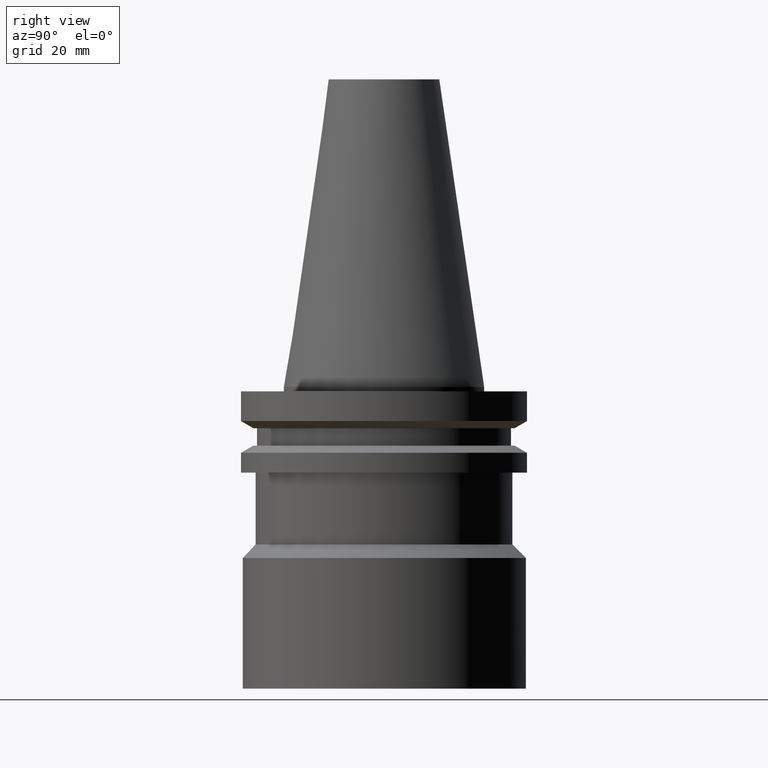
[diagram: clean part render]
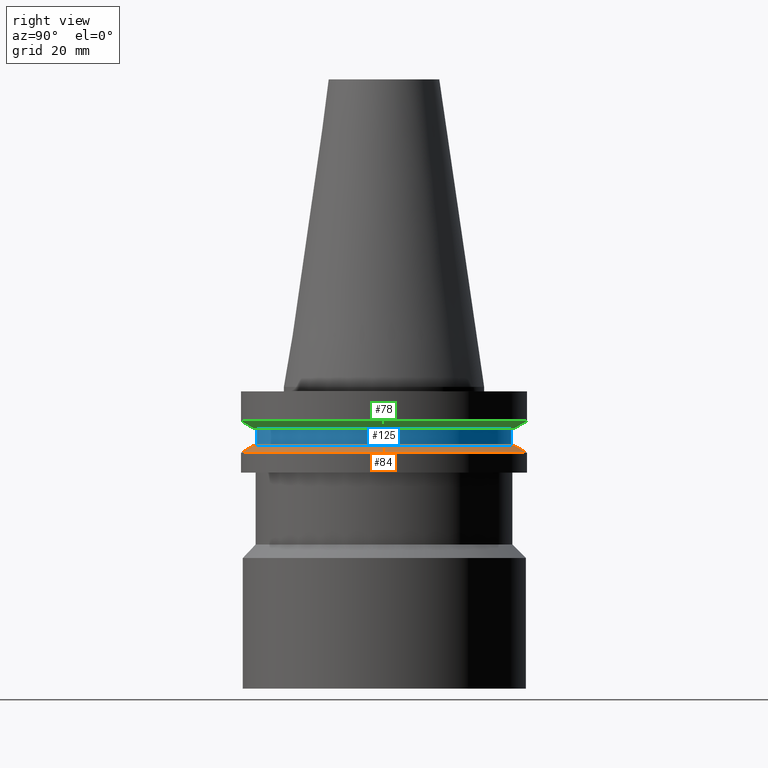
[diagram: same view with three faces highlighted in distinct colors, each labeled with its STEP entity id]
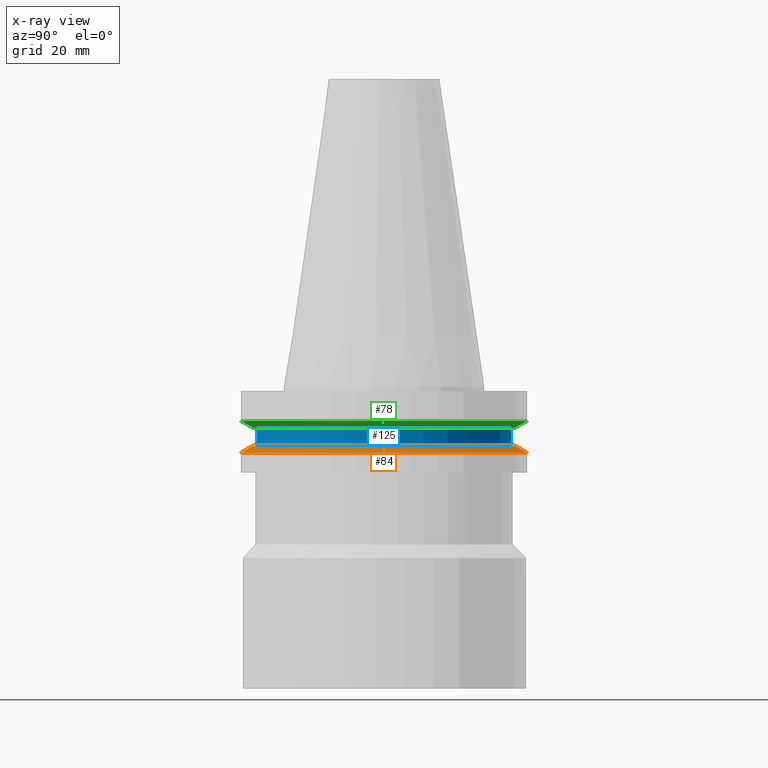
[diagram: x-ray of the same camera — body ghosted, the three highlighted faces saturated]
A machine part, right view with three faces highlighted in distinct colors.
The next image is the same camera in x-ray (body ghosted, the three faces saturated) — at least one of them is partly hidden behind the body in this view.
Their STEP definitions:

[orange] entity #84 — the highlighted conical surface has half-angle 60 deg.
#84=ADVANCED_FACE('Unnamed[1]',(#194,#195),#196,.T.);
#119=EDGE_CURVE('Unnamed[1]',#250,#250,#251,.T.);
#132=EDGE_CURVE('Unnamed[1]',#271,#271,#272,.T.);
#194=FACE_BOUND('',#337,.T.);
#195=FACE_BOUND('',#338,.T.);
#196=CONICAL_SURFACE('',#339,30.3590187752662,1.0471975511966);
#250=VERTEX_POINT('',#407);
#251=CIRCLE('',#408,31.75);
#271=VERTEX_POINT('',#433);
#272=CIRCLE('',#434,28.9680375505324);
#337=EDGE_LOOP('',(#485));
#338=EDGE_LOOP('',(#486));
#339=AXIS2_PLACEMENT_3D('',#487,#488,#489);
#407=CARTESIAN_POINT('',(8.96819062676333E-016,31.75,-14.6461667690755));
#408=AXIS2_PLACEMENT_3D('',#549,#550,#551);
#433=CARTESIAN_POINT('',(7.98469713044073E-016,28.9680375505324,-13.04));
#434=AXIS2_PLACEMENT_3D('',#573,#574,#575);
#485=ORIENTED_EDGE('',*,*,#119,.F.);
#486=ORIENTED_EDGE('',*,*,#132,.T.);
#487=CARTESIAN_POINT('',(8.47644387860203E-016,-1.86466245337184E-014,-13.8430833845377));
#488=DIRECTION('',(6.12323399573677E-017,-1.22344063254652E-016,-1.0));
#489=DIRECTION('',(2.66426054220624E-033,1.0,-1.22344063254652E-016));
#549=CARTESIAN_POINT('',(8.96819062676333E-016,-1.8744877018115E-014,-14.6461667690755));
#550=DIRECTION('',(6.12323399573677E-017,-1.22344063254663E-016,-1.0));
#551=DIRECTION('',(2.66426054220605E-033,1.0,-1.22344063254663E-016));
#573=CARTESIAN_POINT('',(7.98469713044073E-016,-1.85483720493217E-014,-13.04));
#574=DIRECTION('',(6.12323399573677E-017,-1.2234406325464E-016,-1.0));
#575=DIRECTION('',(2.66426054220334E-033,1.0,-1.2234406325464E-016));

[blue] entity #125 — the highlighted cylindrical surface (bore or boss wall) has radius 28.18 mm, axis along (0, -0, -1).
#59=EDGE_CURVE('Unnamed[1]',#158,#158,#159,.T.);
#71=EDGE_CURVE('Unnamed[1]',#175,#175,#176,.T.);
#125=ADVANCED_FACE('Unnamed[1]',(#259,#260),#261,.T.);
#158=VERTEX_POINT('',#292);
#159=CIRCLE('',#293,28.18);
#175=VERTEX_POINT('',#313);
#176=CIRCLE('',#314,28.18);
#259=FACE_BOUND('',#418,.T.);
#260=FACE_BOUND('',#419,.T.);
#261=CYLINDRICAL_SURFACE('',#420,28.18);
#292=CARTESIAN_POINT('',(5.63337527607784E-016,28.18,-9.20000000000002));
#293=AXIS2_PLACEMENT_3D('',#448,#449,#450);
#313=CARTESIAN_POINT('',(7.98469713044073E-016,28.18,-13.04));
#314=AXIS2_PLACEMENT_3D('',#464,#465,#466);
#418=EDGE_LOOP('',(#559));
#419=EDGE_LOOP('',(#560));
#420=AXIS2_PLACEMENT_3D('',#561,#562,#563);
#448=CARTESIAN_POINT('',(5.63337527607784E-016,-1.80785708464238E-014,-9.20000000000002));
#449=DIRECTION('',(6.12323399573676E-017,-1.22344063254674E-016,-1.0));
#450=DIRECTION('',(2.66426054220673E-033,1.0,-1.22344063254674E-016));
#464=CARTESIAN_POINT('',(7.98469713044073E-016,-1.85483720493217E-014,-13.04));
#465=DIRECTION('',(6.12323399573677E-017,-1.22344063254674E-016,-1.0));
#466=DIRECTION('',(2.66426054220673E-033,1.0,-1.22344063254674E-016));
#559=ORIENTED_EDGE('',*,*,#71,.F.);
#560=ORIENTED_EDGE('',*,*,#59,.T.);
#561=CARTESIAN_POINT('',(6.80903620325928E-016,-1.83134714478728E-014,-11.12));
#562=DIRECTION('',(6.12323399573677E-017,-1.22344063254674E-016,-1.0));
#563=DIRECTION('',(2.66426054220673E-033,1.0,-1.22344063254674E-016));

[green] entity #78 — the highlighted conical surface has half-angle 60 deg.
#75=EDGE_CURVE('Unnamed[1]',#181,#181,#182,.T.);
#78=ADVANCED_FACE('Unnamed[1]',(#185,#186),#187,.T.);
#92=EDGE_CURVE('Unnamed[1]',#207,#207,#208,.T.);
#181=VERTEX_POINT('',#321);
#182=CIRCLE('',#322,28.9680375505323);
#185=FACE_BOUND('',#326,.T.);
#186=FACE_BOUND('',#327,.T.);
#187=CONICAL_SURFACE('',#328,30.3590187752662,1.0471975511966);
#207=VERTEX_POINT('',#354);
#208=CIRCLE('',#355,31.75);
#321=CARTESIAN_POINT('',(5.63337527607784E-016,28.9680375505323,-9.20000000000002));
#322=AXIS2_PLACEMENT_3D('',#470,#471,#472);
#326=EDGE_LOOP('',(#474));
#327=EDGE_LOOP('',(#475));
#328=AXIS2_PLACEMENT_3D('',#476,#477,#478);
#354=CARTESIAN_POINT('',(4.64988177975518E-016,31.75,-7.59383323092439));
#355=AXIS2_PLACEMENT_3D('',#499,#500,#501);
#470=CARTESIAN_POINT('',(5.63337527607784E-016,-1.80785708464238E-014,-9.20000000000002));
#471=DIRECTION('',(6.12323399573677E-017,-1.22344063254641E-016,-1.0));
#472=DIRECTION('',(2.66426054220645E-033,1.0,-1.22344063254641E-016));
#474=ORIENTED_EDGE('',*,*,#75,.F.);
#475=ORIENTED_EDGE('',*,*,#92,.T.);
#476=CARTESIAN_POINT('',(5.14162852791651E-016,-1.79803183620272E-014,-8.3969166154622));
#477=DIRECTION('',(-6.12323399573677E-017,1.22344063254653E-016,1.0));
#478=DIRECTION('',(2.66426054220624E-033,1.0,-1.22344063254653E-016));
#499=CARTESIAN_POINT('',(4.64988177975518E-016,-1.78820658776305E-014,-7.59383323092439));
#500=DIRECTION('',(6.12323399573677E-017,-1.22344063254663E-016,-1.0));
#501=DIRECTION('',(2.66426054220605E-033,1.0,-1.22344063254663E-016));